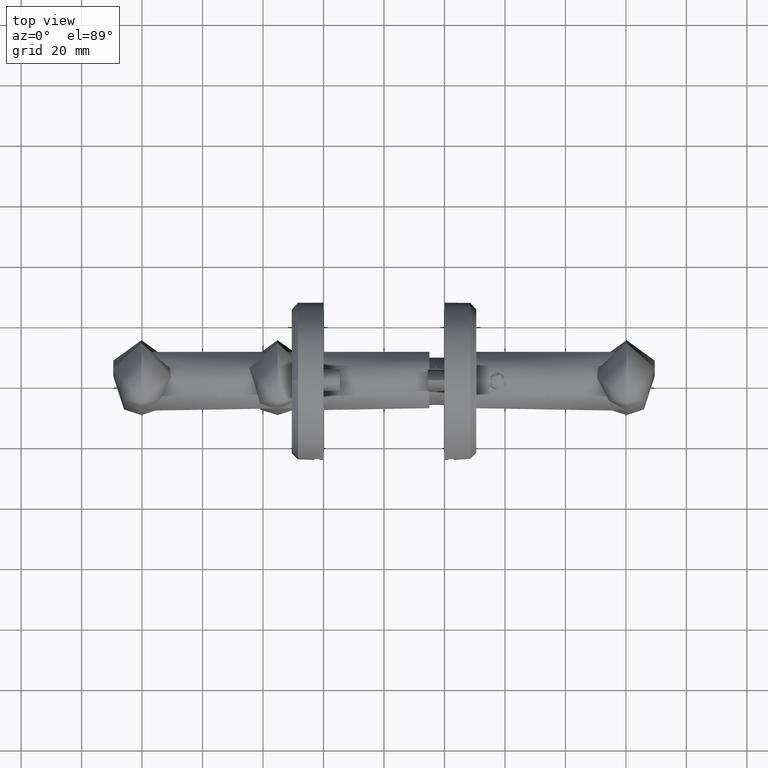
[diagram: clean part render]
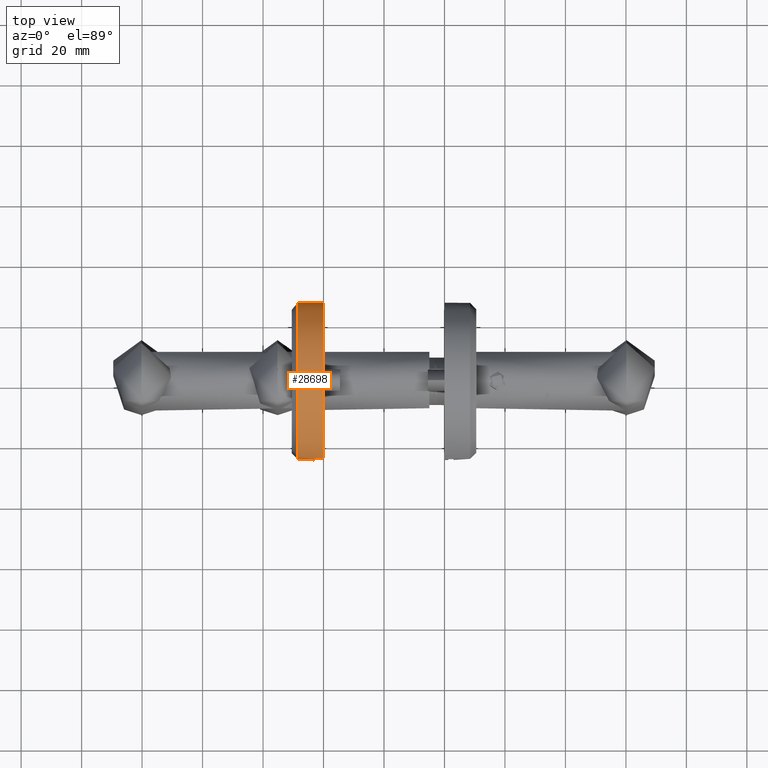
[diagram: same view with one face highlighted and labeled with its STEP entity id]
A machine part, top view. The second image highlights one B-rep face of the part: STEP entity #28698.
In plain terms, the highlighted cylindrical surface (bore or boss wall) has radius 26 mm, axis along (1, 0, -0).
Its self-contained STEP definition (entity closure, byte-faithful):
#28 = ORIENTED_EDGE ( 'NONE', *, *, #39206, .T. ) ;
#408 = AXIS2_PLACEMENT_3D ( 'NONE', #13226, #10021, #35618 ) ;
#745 = CYLINDRICAL_SURFACE ( 'NONE', #19701, 26.00000000000000400 ) ;
#2613 = DIRECTION ( 'NONE',  ( -1.000000000000000000, 0.0000000000000000000, 0.0000000000000000000 ) ) ;
#3163 = CARTESIAN_POINT ( 'NONE',  ( 0.0000000000000000000, 0.0000000000000000000, 10.50000000000000000 ) ) ;
#4356 = CARTESIAN_POINT ( 'NONE',  ( 0.0000000000000000000, 0.0000000000000000000, 2.999999999999998200 ) ) ;
#4897 = EDGE_LOOP ( 'NONE', ( #28, #8724, #6851, #20171 ) ) ;
#5802 = VERTEX_POINT ( 'NONE', #12410 ) ;
#6851 = ORIENTED_EDGE ( 'NONE', *, *, #25243, .T. ) ;
#7858 = DIRECTION ( 'NONE',  ( -0.0000000000000000000, -0.0000000000000000000, -1.000000000000000000 ) ) ;
#8447 = DIRECTION ( 'NONE',  ( 0.0000000000000000000, 0.0000000000000000000, 1.000000000000000000 ) ) ;
#8633 = CARTESIAN_POINT ( 'NONE',  ( 3.900000000000000400, -25.70583591327074700, -1.734723475976807100E-015 ) ) ;
#8724 = ORIENTED_EDGE ( 'NONE', *, *, #16724, .T. ) ;
#8810 = EDGE_LOOP ( 'NONE', ( #31513 ) ) ;
#9346 = FACE_OUTER_BOUND ( 'NONE', #8810, .T. ) ;
#9639 = DIRECTION ( 'NONE',  ( 0.0000000000000000000, 0.0000000000000000000, 1.000000000000000000 ) ) ;
#9659 = DIRECTION ( 'NONE',  ( -0.0000000000000000000, -0.0000000000000000000, -1.000000000000000000 ) ) ;
#10021 = DIRECTION ( 'NONE',  ( -0.0000000000000000000, -0.0000000000000000000, -1.000000000000000000 ) ) ;
#10800 = CARTESIAN_POINT ( 'NONE',  ( 3.899999999999999900, -25.70583591327074300, 2.999999999999998200 ) ) ;
#12410 = CARTESIAN_POINT ( 'NONE',  ( -3.899999999999999900, -25.70583591327074300, 2.999999999999998200 ) ) ;
#13226 = CARTESIAN_POINT ( 'NONE',  ( 0.0000000000000000000, 0.0000000000000000000, 8.500000000000000000 ) ) ;
#14390 = FACE_OUTER_BOUND ( 'NONE', #4897, .T. ) ;
#15830 = VERTEX_POINT ( 'NONE', #10800 ) ;
#16724 = EDGE_CURVE ( 'NONE', #5802, #15830, #17635, .T. ) ;
#16830 = LINE ( 'NONE', #31563, #22308 ) ;
#17406 = EDGE_CURVE ( 'NONE', #27596, #19554, #38123, .T. ) ;
#17635 = CIRCLE ( 'NONE', #37594, 26.00000000000000400 ) ;
#17940 = CARTESIAN_POINT ( 'NONE',  ( 3.899999999999998600, -25.70583591327074300, 10.50000000000000000 ) ) ;
#18890 = DIRECTION ( 'NONE',  ( 1.000000000000000000, 0.0000000000000000000, 0.0000000000000000000 ) ) ;
#18967 = DIRECTION ( 'NONE',  ( 0.0000000000000000000, 0.0000000000000000000, 1.000000000000000000 ) ) ;
#19554 = VERTEX_POINT ( 'NONE', #35446 ) ;
#19701 = AXIS2_PLACEMENT_3D ( 'NONE', #3163, #9659, #2613 ) ;
#20171 = ORIENTED_EDGE ( 'NONE', *, *, #17406, .T. ) ;
#21458 = LINE ( 'NONE', #17940, #38961 ) ;
#22308 = VECTOR ( 'NONE', #18967, 1000.000000000000000 ) ;
#24574 = EDGE_CURVE ( 'NONE', #25164, #25164, #28005, .T. ) ;
#25164 = VERTEX_POINT ( 'NONE', #35828 ) ;
#25243 = EDGE_CURVE ( 'NONE', #15830, #27596, #21458, .T. ) ;
#25316 = CARTESIAN_POINT ( 'NONE',  ( 0.0000000000000000000, 0.0000000000000000000, 0.0000000000000000000 ) ) ;
#26809 = AXIS2_PLACEMENT_3D ( 'NONE', #25316, #9639, #18890 ) ;
#27596 = VERTEX_POINT ( 'NONE', #8633 ) ;
#28005 = CIRCLE ( 'NONE', #408, 26.00000000000000400 ) ;
#28698 = ADVANCED_FACE ( 'NONE', ( #9346, #14390 ), #745, .T. ) ;
#31513 = ORIENTED_EDGE ( 'NONE', *, *, #24574, .T. ) ;
#31563 = CARTESIAN_POINT ( 'NONE',  ( -3.899999999999999900, -25.70583591327074300, 10.50000000000000000 ) ) ;
#35446 = CARTESIAN_POINT ( 'NONE',  ( -3.899999999999999900, -25.70583591327074700, -1.283785409773493500E-015 ) ) ;
#35618 = DIRECTION ( 'NONE',  ( 1.000000000000000000, 0.0000000000000000000, 0.0000000000000000000 ) ) ;
#35828 = CARTESIAN_POINT ( 'NONE',  ( 26.00000000000000400, 0.0000000000000000000, 8.500000000000000000 ) ) ;
#37021 = DIRECTION ( 'NONE',  ( 1.000000000000000000, 0.0000000000000000000, 0.0000000000000000000 ) ) ;
#37594 = AXIS2_PLACEMENT_3D ( 'NONE', #4356, #8447, #37021 ) ;
#38123 = CIRCLE ( 'NONE', #26809, 26.00000000000000400 ) ;
#38961 = VECTOR ( 'NONE', #7858, 1000.000000000000000 ) ;
#39206 = EDGE_CURVE ( 'NONE', #19554, #5802, #16830, .T. ) ;